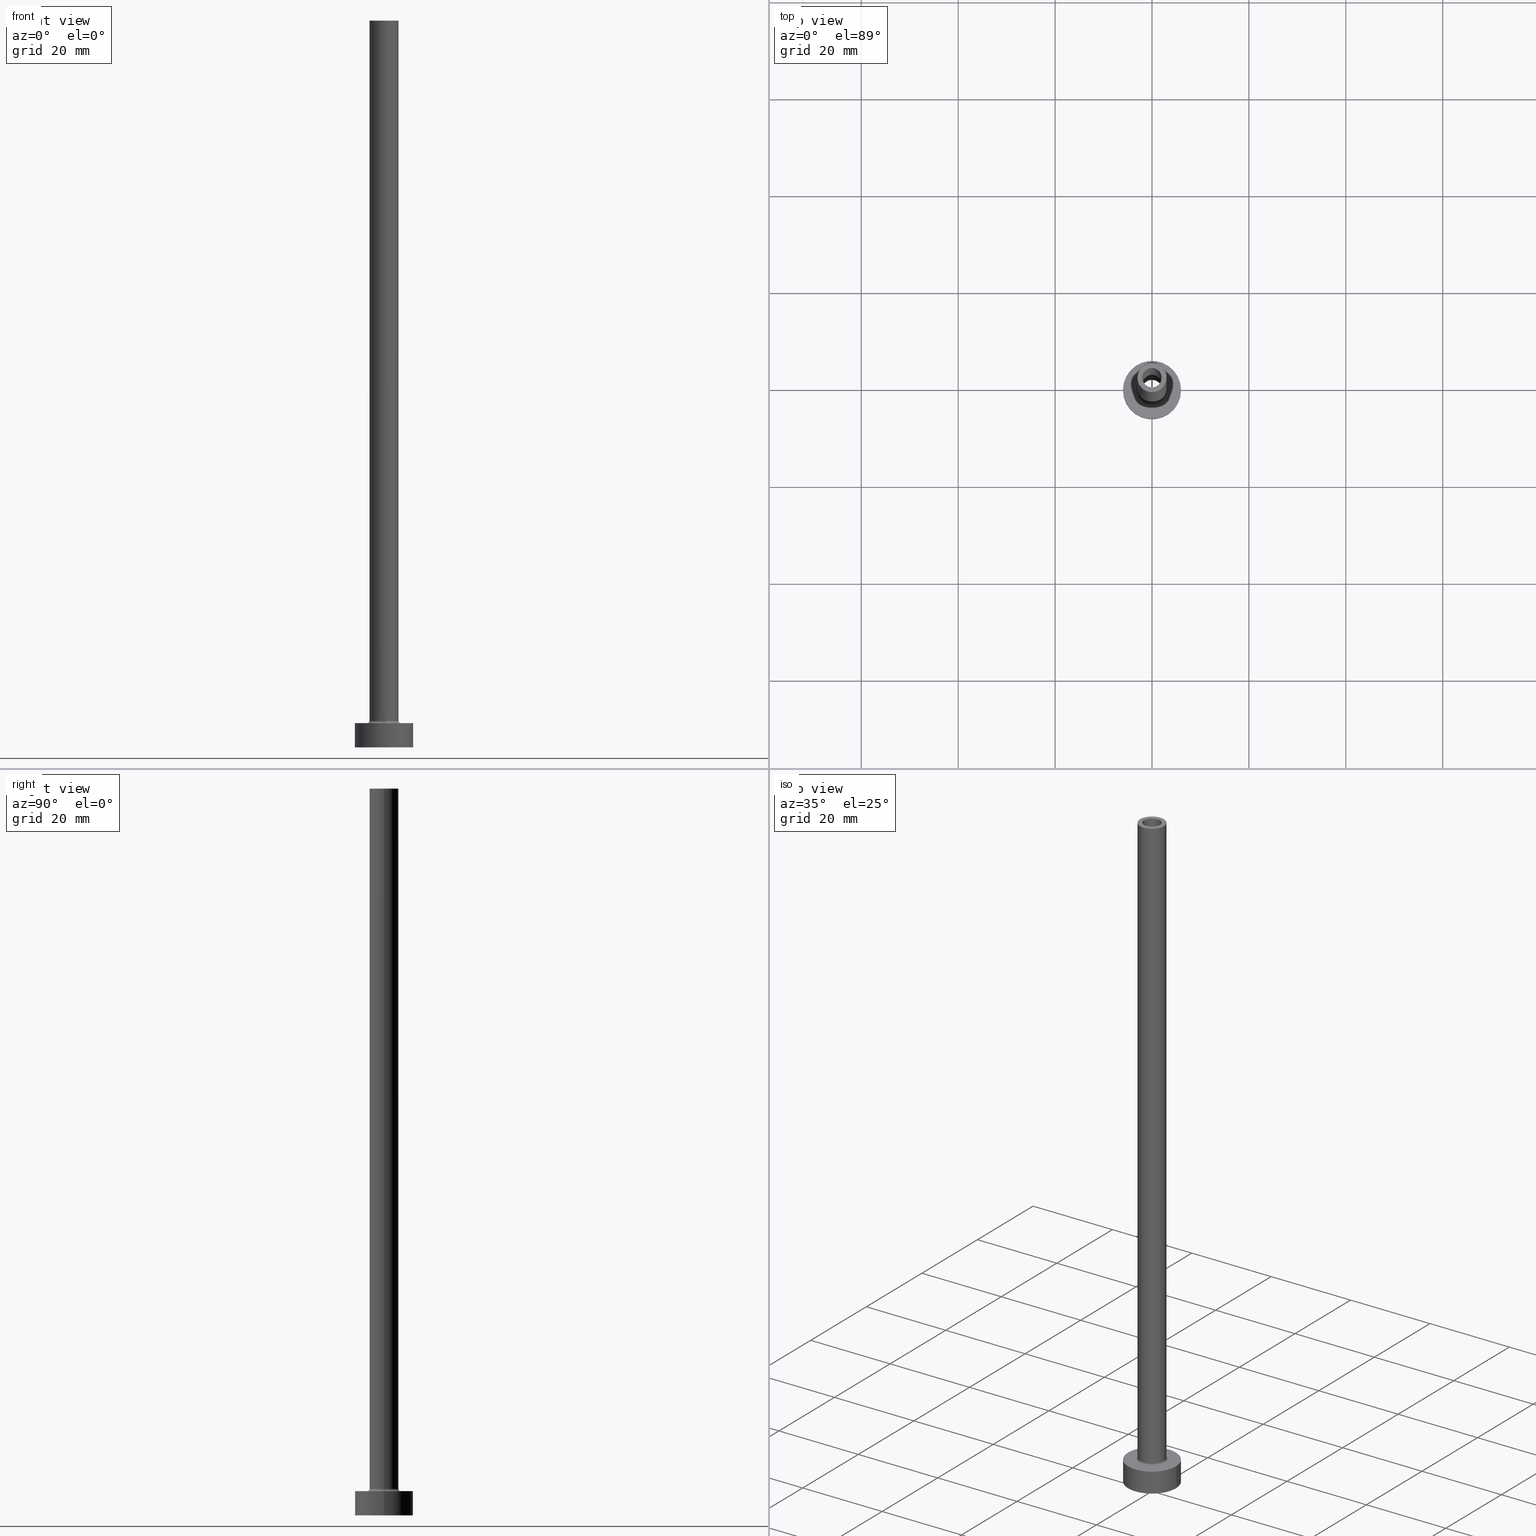
[diagram: canonical four-view strip — front | top / right | iso, engineering-drawing reading convention]
A machine part, canonical four-view strip (front | top / right | iso — engineering-drawing reading convention). The complete STEP part file that produces these views, byte-faithful:
ISO-10303-21;
HEADER;
FILE_DESCRIPTION (( 'STEP AP203' ),
    '1' );
FILE_NAME ('094d.STEP',
    '2023-02-13T11:09:22',
    ( '' ),
    ( '' ),
    'SwSTEP 2.0',
    'SolidWorks 2019',
    '' );
FILE_SCHEMA (( 'CONFIG_CONTROL_DESIGN' ));
ENDSEC;

DATA;
#1 = DIRECTION ( 'NONE',  ( 1.000000000000000000, 0.000000000000000000, 0.000000000000000000 ) ) ;
#2 = AXIS2_PLACEMENT_3D ( 'NONE', #33, #73, #353 ) ;
#3 = LINE ( 'NONE', #76, #10 ) ;
#4 = APPLICATION_PROTOCOL_DEFINITION ( 'international standard', 'config_control_design', 1994, #442 ) ;
#5 = CIRCLE ( 'NONE', #227, 0.4999999999999995559 ) ;
#6 = PERSON_AND_ORGANIZATION ( #116, #18 ) ;
#7 = EDGE_LOOP ( 'NONE', ( #170, #437 ) ) ;
#8 = APPROVAL_DATE_TIME ( #62, #239 ) ;
#9 = CARTESIAN_POINT ( 'NONE',  ( 0.000000000000000000, 0.000000000000000000, 5.000000000000000000 ) ) ;
#10 = VECTOR ( 'NONE', #144, 1000.000000000000000 ) ;
#11 = CC_DESIGN_SECURITY_CLASSIFICATION ( #45, ( #257 ) ) ;
#12 = ADVANCED_FACE ( 'NONE', ( #341 ), #241, .T. ) ;
#13 = DIRECTION ( 'NONE',  ( 1.000000000000000000, 0.000000000000000000, 0.000000000000000000 ) ) ;
#14 = VERTEX_POINT ( 'NONE', #409 ) ;
#15 = MECHANICAL_CONTEXT ( 'NONE', #167, 'mechanical' ) ;
#16 = DIRECTION ( 'NONE',  ( 0.000000000000000000, 0.000000000000000000, 1.000000000000000000 ) ) ;
#17 = CARTESIAN_POINT ( 'NONE',  ( 0.000000000000000000, 0.000000000000000000, 105.0000000000000000 ) ) ;
#18 = ORGANIZATION ( 'NEUR�EN�', 'NEUR�EN�', '' ) ;
#19 = ORIENTED_EDGE ( 'NONE', *, *, #328, .F. ) ;
#20 = ADVANCED_FACE ( 'NONE', ( #199 ), #68, .F. ) ;
#21 = VERTEX_POINT ( 'NONE', #180 ) ;
#22 = APPROVAL_STATUS ( 'not_yet_approved' ) ;
#23 = DIRECTION ( 'NONE',  ( 1.000000000000000000, 0.000000000000000000, 0.000000000000000000 ) ) ;
#24 = DIRECTION ( 'NONE',  ( 0.000000000000000000, 0.000000000000000000, -1.000000000000000000 ) ) ;
#25 = DIRECTION ( 'NONE',  ( 0.000000000000000000, 0.000000000000000000, -1.000000000000000000 ) ) ;
#26 = DIRECTION ( 'NONE',  ( 0.000000000000000000, 0.000000000000000000, 1.000000000000000000 ) ) ;
#27 = EDGE_LOOP ( 'NONE', ( #350, #196 ) ) ;
#28 = CC_DESIGN_DATE_AND_TIME_ASSIGNMENT ( #415, #137, ( #45 ) ) ;
#29 = VERTEX_POINT ( 'NONE', #212 ) ;
#30 = ADVANCED_BREP_SHAPE_REPRESENTATION ( '094d', ( #325, #221 ), #247 ) ;
#31 = CARTESIAN_POINT ( 'NONE',  ( 0.000000000000000000, 0.000000000000000000, 105.0000000000000000 ) ) ;
#32 = AXIS2_PLACEMENT_3D ( 'NONE', #246, #147, #182 ) ;
#33 = CARTESIAN_POINT ( 'NONE',  ( 0.000000000000000000, 0.000000000000000000, 111.0811183182043180 ) ) ;
#34 = AXIS2_PLACEMENT_3D ( 'NONE', #301, #429, #13 ) ;
#35 =( NAMED_UNIT ( * ) PLANE_ANGLE_UNIT ( ) SI_UNIT ( $, .RADIAN. ) );
#36 = CARTESIAN_POINT ( 'NONE',  ( 2.149999999999999911, 2.632990618166809235E-16, 105.0000000000000000 ) ) ;
#37 = DIRECTION ( 'NONE',  ( 0.000000000000000000, 0.000000000000000000, 1.000000000000000000 ) ) ;
#38 = EDGE_CURVE ( 'NONE', #14, #201, #378, .T. ) ;
#39 = CC_DESIGN_DATE_AND_TIME_ASSIGNMENT ( #79, #150, ( #249 ) ) ;
#40 = APPROVAL_STATUS ( 'not_yet_approved' ) ;
#41 = CALENDAR_DATE ( 2023, 13, 2 ) ;
#42 = DIRECTION ( 'NONE',  ( 0.000000000000000000, 0.000000000000000000, 1.000000000000000000 ) ) ;
#43 = ADVANCED_FACE ( 'NONE', ( #289 ), #280, .F. ) ;
#44 = VECTOR ( 'NONE', #461, 1000.000000000000000 ) ;
#45 = SECURITY_CLASSIFICATION ( '', '', #338 ) ;
#46 = APPROVAL_ROLE ( '' ) ;
#47 = PLANE ( 'NONE',  #323 ) ;
#48 = EDGE_LOOP ( 'NONE', ( #71, #310, #275, #218 ) ) ;
#49 = VERTEX_POINT ( 'NONE', #375 ) ;
#50 = EDGE_CURVE ( 'NONE', #49, #131, #91, .T. ) ;
#51 = ORIENTED_EDGE ( 'NONE', *, *, #329, .T. ) ;
#52 = EDGE_CURVE ( 'NONE', #284, #127, #138, .T. ) ;
#53 = ORIENTED_EDGE ( 'NONE', *, *, #232, .T. ) ;
#54 = EDGE_CURVE ( 'NONE', #453, #21, #337, .T. ) ;
#55 = VERTEX_POINT ( 'NONE', #314 ) ;
#56 = DIRECTION ( 'NONE',  ( 1.000000000000000000, 0.000000000000000000, -0.000000000000000000 ) ) ;
#57 = DIRECTION ( 'NONE',  ( -1.000000000000000000, 0.000000000000000000, 0.000000000000000000 ) ) ;
#58 = ORIENTED_EDGE ( 'NONE', *, *, #157, .T. ) ;
#59 = CARTESIAN_POINT ( 'NONE',  ( 0.000000000000000000, 0.000000000000000000, 0.000000000000000000 ) ) ;
#60 = DIRECTION ( 'NONE',  ( -1.000000000000000000, 1.224646799147354440E-16, 0.000000000000000000 ) ) ;
#61 = FACE_OUTER_BOUND ( 'NONE', #271, .T. ) ;
#62 = DATE_AND_TIME ( #92, #155 ) ;
#63 = CALENDAR_DATE ( 2023, 13, 2 ) ;
#64 = EDGE_LOOP ( 'NONE', ( #347, #402, #103, #19 ) ) ;
#65 = CARTESIAN_POINT ( 'NONE',  ( -3.000000000000000444, 0.000000000000000000, 150.0000000000000000 ) ) ;
#66 = PERSON_AND_ORGANIZATION_ROLE ( 'classification_officer' ) ;
#67 = ADVANCED_FACE ( 'NONE', ( #161 ), #136, .F. ) ;
#68 = CYLINDRICAL_SURFACE ( 'NONE', #121, 2.149999999999999911 ) ;
#69 = AXIS2_PLACEMENT_3D ( 'NONE', #94, #374, #97 ) ;
#70 = APPROVAL_PERSON_ORGANIZATION ( #186, #244, #256 ) ;
#71 = ORIENTED_EDGE ( 'NONE', *, *, #460, .F. ) ;
#72 = CARTESIAN_POINT ( 'NONE',  ( 0.000000000000000000, 0.000000000000000000, 5.500000000000005329 ) ) ;
#73 = DIRECTION ( 'NONE',  ( 0.000000000000000000, 0.000000000000000000, -1.000000000000000000 ) ) ;
#74 = CYLINDRICAL_SURFACE ( 'NONE', #87, 6.000000000000000888 ) ;
#75 = DIRECTION ( 'NONE',  ( 1.000000000000000000, 0.000000000000000000, 0.000000000000000000 ) ) ;
#76 = CARTESIAN_POINT ( 'NONE',  ( 2.149999999999999911, 2.632990618166809235E-16, 111.0811183182043180 ) ) ;
#77 = VECTOR ( 'NONE', #265, 1000.000000000000000 ) ;
#78 = DIRECTION ( 'NONE',  ( 0.000000000000000000, 0.000000000000000000, 1.000000000000000000 ) ) ;
#79 = DATE_AND_TIME ( #299, #398 ) ;
#80 = AXIS2_PLACEMENT_3D ( 'NONE', #259, #189, #324 ) ;
#81 = AXIS2_PLACEMENT_3D ( 'NONE', #72, #243, #383 ) ;
#82 = DIRECTION ( 'NONE',  ( 0.000000000000000000, -1.000000000000000000, 0.000000000000000000 ) ) ;
#83 = FACE_BOUND ( 'NONE', #7, .T. ) ;
#84 = ORIENTED_EDGE ( 'NONE', *, *, #297, .F. ) ;
#85 = VECTOR ( 'NONE', #203, 1000.000000000000000 ) ;
#86 = ADVANCED_FACE ( 'NONE', ( #200, #61 ), #177, .T. ) ;
#87 = AXIS2_PLACEMENT_3D ( 'NONE', #354, #318, #458 ) ;
#88 = ORIENTED_EDGE ( 'NONE', *, *, #153, .T. ) ;
#89 = ORIENTED_EDGE ( 'NONE', *, *, #340, .T. ) ;
#90 = VECTOR ( 'NONE', #174, 1000.000000000000000 ) ;
#91 = LINE ( 'NONE', #349, #90 ) ;
#92 = CALENDAR_DATE ( 2023, 13, 2 ) ;
#93 = APPROVAL_PERSON_ORGANIZATION ( #252, #239, #46 ) ;
#94 = CARTESIAN_POINT ( 'NONE',  ( 0.000000000000000000, 0.000000000000000000, 105.0000000000000000 ) ) ;
#95 = ADVANCED_FACE ( 'NONE', ( #452 ), #288, .T. ) ;
#96 = CARTESIAN_POINT ( 'NONE',  ( 0.000000000000000000, 0.000000000000000000, 111.0811183182043180 ) ) ;
#97 = DIRECTION ( 'NONE',  ( 1.000000000000000000, 0.000000000000000000, 0.000000000000000000 ) ) ;
#98 = ORIENTED_EDGE ( 'NONE', *, *, #297, .T. ) ;
#99 = EDGE_LOOP ( 'NONE', ( #211, #173 ) ) ;
#100 = CIRCLE ( 'NONE', #413, 2.000000000000000000 ) ;
#101 = ORIENTED_EDGE ( 'NONE', *, *, #329, .F. ) ;
#102 = DIRECTION ( 'NONE',  ( 0.000000000000000000, 0.000000000000000000, 1.000000000000000000 ) ) ;
#103 = ORIENTED_EDGE ( 'NONE', *, *, #168, .T. ) ;
#104 = DIRECTION ( 'NONE',  ( -0.000000000000000000, -0.000000000000000000, -1.000000000000000000 ) ) ;
#105 = DIRECTION ( 'NONE',  ( 1.000000000000000000, 0.000000000000000000, 0.000000000000000000 ) ) ;
#106 = AXIS2_PLACEMENT_3D ( 'NONE', #262, #42, #156 ) ;
#107 = CARTESIAN_POINT ( 'NONE',  ( 2.000000000000000000, 2.449293598294705921E-16, 150.0000000000000000 ) ) ;
#108 = FACE_OUTER_BOUND ( 'NONE', #48, .T. ) ;
#109 = VERTEX_POINT ( 'NONE', #152 ) ;
#110 = PERSON_AND_ORGANIZATION_ROLE ( 'creator' ) ;
#111 = ADVANCED_FACE ( 'NONE', ( #322 ), #386, .T. ) ;
#112 = DIRECTION ( 'NONE',  ( 1.000000000000000000, 0.000000000000000000, 0.000000000000000000 ) ) ;
#113 = EDGE_LOOP ( 'NONE', ( #395, #352, #377, #343 ) ) ;
#114 = CC_DESIGN_PERSON_AND_ORGANIZATION_ASSIGNMENT ( #6, #110, ( #249 ) ) ;
#115 = DIRECTION ( 'NONE',  ( 0.000000000000000000, 0.000000000000000000, 1.000000000000000000 ) ) ;
#116 = PERSON ( 'NEUR�EN�', 'NEUR�EN�', 'NEUR�EN�', ('NEUR�EN�'), ('NEUR�EN�'), ('NEUR�EN�') ) ;
#117 = AXIS2_PLACEMENT_3D ( 'NONE', #367, #444, #269 ) ;
#118 = PERSON_AND_ORGANIZATION ( #116, #18 ) ;
#119 = EDGE_LOOP ( 'NONE', ( #229, #88, #228, #84 ) ) ;
#120 = CARTESIAN_POINT ( 'NONE',  ( -2.000000000000000000, 0.000000000000000000, 150.0000000000000000 ) ) ;
#121 = AXIS2_PLACEMENT_3D ( 'NONE', #96, #25, #443 ) ;
#122 = CARTESIAN_POINT ( 'NONE',  ( 3.000000000000000444, 3.673940397442060361E-16, 150.0000000000000000 ) ) ;
#123 = VERTEX_POINT ( 'NONE', #295 ) ;
#124 = CARTESIAN_POINT ( 'NONE',  ( 0.000000000000000000, 0.000000000000000000, 5.000000000000000000 ) ) ;
#125 = VERTEX_POINT ( 'NONE', #283 ) ;
#126 = DIRECTION ( 'NONE',  ( 0.000000000000000000, 0.000000000000000000, -1.000000000000000000 ) ) ;
#127 = VERTEX_POINT ( 'NONE', #216 ) ;
#128 = CIRCLE ( 'NONE', #455, 3.500000000000000444 ) ;
#129 = PERSON_AND_ORGANIZATION ( #116, #18 ) ;
#130 = AXIS2_PLACEMENT_3D ( 'NONE', #17, #306, #441 ) ;
#131 = VERTEX_POINT ( 'NONE', #384 ) ;
#132 = DIRECTION ( 'NONE',  ( 1.000000000000000000, 0.000000000000000000, 0.000000000000000000 ) ) ;
#133 = APPROVAL_DATE_TIME ( #205, #405 ) ;
#134 = EDGE_CURVE ( 'NONE', #55, #453, #411, .T. ) ;
#135 = LINE ( 'NONE', #65, #85 ) ;
#136 = CYLINDRICAL_SURFACE ( 'NONE', #190, 2.000000000000000000 ) ;
#137 = DATE_TIME_ROLE ( 'classification_date' ) ;
#138 = CIRCLE ( 'NONE', #293, 3.500000000000000444 ) ;
#139 = EDGE_CURVE ( 'NONE', #29, #194, #210, .T. ) ;
#140 = DIRECTION ( 'NONE',  ( 1.000000000000000000, 0.000000000000000000, 0.000000000000000000 ) ) ;
#141 = CIRCLE ( 'NONE', #32, 3.000000000000000444 ) ;
#142 = CC_DESIGN_APPROVAL ( #244, ( #249 ) ) ;
#143 = ORIENTED_EDGE ( 'NONE', *, *, #171, .F. ) ;
#144 = DIRECTION ( 'NONE',  ( 0.000000000000000000, 0.000000000000000000, -1.000000000000000000 ) ) ;
#145 = UNCERTAINTY_MEASURE_WITH_UNIT (LENGTH_MEASURE( 1.000000000000000082E-05 ), #362, 'distance_accuracy_value', 'NONE');
#146 = FACE_OUTER_BOUND ( 'NONE', #119, .T. ) ;
#147 = DIRECTION ( 'NONE',  ( 0.000000000000000000, 0.000000000000000000, 1.000000000000000000 ) ) ;
#148 = CIRCLE ( 'NONE', #169, 6.000000000000000888 ) ;
#149 = CARTESIAN_POINT ( 'NONE',  ( 0.000000000000000000, 0.000000000000000000, 0.000000000000000000 ) ) ;
#150 = DATE_TIME_ROLE ( 'creation_date' ) ;
#151 = APPROVAL_STATUS ( 'not_yet_approved' ) ;
#152 = CARTESIAN_POINT ( 'NONE',  ( 2.149999999999999911, 2.632990618166809235E-16, 0.000000000000000000 ) ) ;
#153 = EDGE_CURVE ( 'NONE', #125, #127, #5, .T. ) ;
#154 = ADVANCED_FACE ( 'NONE', ( #108 ), #300, .F. ) ;
#155 = LOCAL_TIME ( 12, 9, 22.00000000000000000, #192 ) ;
#156 = DIRECTION ( 'NONE',  ( 1.000000000000000000, 0.000000000000000000, 0.000000000000000000 ) ) ;
#157 = EDGE_CURVE ( 'NONE', #127, #284, #128, .T. ) ;
#158 = LINE ( 'NONE', #305, #206 ) ;
#159 = ORIENTED_EDGE ( 'NONE', *, *, #304, .T. ) ;
#160 = AXIS2_PLACEMENT_3D ( 'NONE', #419, #104, #294 ) ;
#161 = FACE_OUTER_BOUND ( 'NONE', #176, .T. ) ;
#162 = ORIENTED_EDGE ( 'NONE', *, *, #52, .T. ) ;
#163 = ORIENTED_EDGE ( 'NONE', *, *, #232, .F. ) ;
#164 = PERSON_AND_ORGANIZATION_ROLE ( 'design_supplier' ) ;
#165 = DIRECTION ( 'NONE',  ( -1.000000000000000000, 0.000000000000000000, 0.000000000000000000 ) ) ;
#166 = DIRECTION ( 'NONE',  ( -0.000000000000000000, -0.000000000000000000, -1.000000000000000000 ) ) ;
#167 = APPLICATION_CONTEXT ( 'configuration controlled 3d designs of mechanical parts and assemblies' ) ;
#168 = EDGE_CURVE ( 'NONE', #109, #277, #390, .T. ) ;
#169 = AXIS2_PLACEMENT_3D ( 'NONE', #245, #387, #112 ) ;
#170 = ORIENTED_EDGE ( 'NONE', *, *, #181, .F. ) ;
#171 = EDGE_CURVE ( 'NONE', #21, #407, #236, .T. ) ;
#172 = DIRECTION ( 'NONE',  ( -0.000000000000000000, -0.000000000000000000, -1.000000000000000000 ) ) ;
#173 = ORIENTED_EDGE ( 'NONE', *, *, #134, .F. ) ;
#174 = DIRECTION ( 'NONE',  ( -0.000000000000000000, -0.000000000000000000, -1.000000000000000000 ) ) ;
#175 = EDGE_CURVE ( 'NONE', #285, #125, #135, .T. ) ;
#176 = EDGE_LOOP ( 'NONE', ( #159, #370, #143, #404 ) ) ;
#177 = PLANE ( 'NONE',  #388 ) ;
#178 = AXIS2_PLACEMENT_3D ( 'NONE', #361, #37, #105 ) ;
#179 = CIRCLE ( 'NONE', #372, 6.000000000000000888 ) ;
#180 = CARTESIAN_POINT ( 'NONE',  ( -2.000000000000000000, 0.000000000000000000, 105.0000000000000000 ) ) ;
#181 = EDGE_CURVE ( 'NONE', #277, #109, #438, .T. ) ;
#182 = DIRECTION ( 'NONE',  ( 1.000000000000000000, 0.000000000000000000, 0.000000000000000000 ) ) ;
#183 = DIRECTION ( 'NONE',  ( 0.000000000000000000, 0.000000000000000000, 1.000000000000000000 ) ) ;
#184 =( NAMED_UNIT ( * ) SI_UNIT ( $, .STERADIAN. ) SOLID_ANGLE_UNIT ( ) );
#185 = DIRECTION ( 'NONE',  ( 0.000000000000000000, 0.000000000000000000, 1.000000000000000000 ) ) ;
#186 = PERSON_AND_ORGANIZATION ( #116, #18 ) ;
#187 = CARTESIAN_POINT ( 'NONE',  ( 3.500000000000000444, 0.000000000000000000, 5.000000000000002665 ) ) ;
#188 = ORIENTED_EDGE ( 'NONE', *, *, #440, .F. ) ;
#189 = DIRECTION ( 'NONE',  ( 0.000000000000000000, 0.000000000000000000, -1.000000000000000000 ) ) ;
#190 = AXIS2_PLACEMENT_3D ( 'NONE', #278, #126, #57 ) ;
#191 = CIRCLE ( 'NONE', #448, 6.000000000000000888 ) ;
#192 = COORDINATED_UNIVERSAL_TIME_OFFSET ( 1, 0, .AHEAD. ) ;
#193 = DIRECTION ( 'NONE',  ( 0.000000000000000000, 0.000000000000000000, 1.000000000000000000 ) ) ;
#194 = VERTEX_POINT ( 'NONE', #449 ) ;
#195 = EDGE_LOOP ( 'NONE', ( #348, #51, #339, #279 ) ) ;
#196 = ORIENTED_EDGE ( 'NONE', *, *, #417, .T. ) ;
#197 = AXIS2_PLACEMENT_3D ( 'NONE', #358, #185, #459 ) ;
#198 = CC_DESIGN_APPROVAL ( #405, ( #45 ) ) ;
#199 = FACE_OUTER_BOUND ( 'NONE', #64, .T. ) ;
#200 = FACE_BOUND ( 'NONE', #99, .T. ) ;
#201 = VERTEX_POINT ( 'NONE', #36 ) ;
#202 = AXIS2_PLACEMENT_3D ( 'NONE', #268, #307, #165 ) ;
#203 = DIRECTION ( 'NONE',  ( -0.000000000000000000, -0.000000000000000000, -1.000000000000000000 ) ) ;
#204 = CARTESIAN_POINT ( 'NONE',  ( 0.000000000000000000, 0.000000000000000000, 5.000000000000000000 ) ) ;
#205 = DATE_AND_TIME ( #63, #421 ) ;
#206 = VECTOR ( 'NONE', #334, 1000.000000000000000 ) ;
#207 = DIRECTION ( 'NONE',  ( 1.000000000000000000, 0.000000000000000000, 0.000000000000000000 ) ) ;
#208 = CC_DESIGN_PERSON_AND_ORGANIZATION_ASSIGNMENT ( #450, #164, ( #257 ) ) ;
#209 = VERTEX_POINT ( 'NONE', #248 ) ;
#210 = LINE ( 'NONE', #355, #44 ) ;
#211 = ORIENTED_EDGE ( 'NONE', *, *, #304, .F. ) ;
#212 = CARTESIAN_POINT ( 'NONE',  ( 6.000000000000000888, 7.347880794884120722E-16, 5.000000000000000000 ) ) ;
#213 = DIRECTION ( 'NONE',  ( -0.000000000000000000, -0.000000000000000000, -1.000000000000000000 ) ) ;
#214 = LOCAL_TIME ( 12, 9, 22.00000000000000000, #220 ) ;
#215 = AXIS2_PLACEMENT_3D ( 'NONE', #371, #193, #56 ) ;
#216 = CARTESIAN_POINT ( 'NONE',  ( -3.500000000000000444, 4.286263797015737088E-16, 5.000000000000002665 ) ) ;
#217 = AXIS2_PLACEMENT_3D ( 'NONE', #381, #360, #1 ) ;
#218 = ORIENTED_EDGE ( 'NONE', *, *, #417, .F. ) ;
#219 = AXIS2_PLACEMENT_3D ( 'NONE', #422, #213, #356 ) ;
#220 = COORDINATED_UNIVERSAL_TIME_OFFSET ( 1, 0, .AHEAD. ) ;
#221 = AXIS2_PLACEMENT_3D ( 'NONE', #149, #251, #396 ) ;
#222 = PRODUCT ( '094d', '094d', '', ( #15 ) ) ;
#223 = EDGE_CURVE ( 'NONE', #123, #125, #141, .T. ) ;
#224 = FACE_BOUND ( 'NONE', #27, .T. ) ;
#225 = FACE_OUTER_BOUND ( 'NONE', #308, .T. ) ;
#226 = PRODUCT_DEFINITION_SHAPE ( 'NONE', 'NONE',  #249 ) ;
#227 = AXIS2_PLACEMENT_3D ( 'NONE', #298, #412, #60 ) ;
#228 = ORIENTED_EDGE ( 'NONE', *, *, #52, .F. ) ;
#229 = ORIENTED_EDGE ( 'NONE', *, *, #389, .F. ) ;
#230 = EDGE_CURVE ( 'NONE', #201, #109, #3, .T. ) ;
#231 = DIRECTION ( 'NONE',  ( -0.000000000000000000, -0.000000000000000000, -1.000000000000000000 ) ) ;
#232 = EDGE_CURVE ( 'NONE', #285, #209, #242, .T. ) ;
#233 = PLANE ( 'NONE',  #215 ) ;
#234 = ORIENTED_EDGE ( 'NONE', *, *, #175, .T. ) ;
#235 = ADVANCED_FACE ( 'NONE', ( #146 ), #447, .F. ) ;
#236 = CIRCLE ( 'NONE', #69, 2.000000000000000000 ) ;
#237 = CIRCLE ( 'NONE', #34, 6.000000000000000888 ) ;
#238 = ORIENTED_EDGE ( 'NONE', *, *, #139, .F. ) ;
#239 = APPROVAL ( #40, 'NEUR�EN�' ) ;
#240 = EDGE_LOOP ( 'NONE', ( #369, #313, #456, #260 ) ) ;
#241 = CYLINDRICAL_SURFACE ( 'NONE', #202, 3.000000000000000444 ) ;
#242 = CIRCLE ( 'NONE', #197, 3.000000000000000444 ) ;
#243 = DIRECTION ( 'NONE',  ( 0.000000000000000000, 0.000000000000000000, 1.000000000000000000 ) ) ;
#244 = APPROVAL ( #151, 'NEUR�EN�' ) ;
#245 = CARTESIAN_POINT ( 'NONE',  ( 0.000000000000000000, 0.000000000000000000, 0.000000000000000000 ) ) ;
#246 = CARTESIAN_POINT ( 'NONE',  ( 0.000000000000000000, 0.000000000000000000, 5.500000000000005329 ) ) ;
#247 =( GEOMETRIC_REPRESENTATION_CONTEXT ( 3 ) GLOBAL_UNCERTAINTY_ASSIGNED_CONTEXT ( ( #145 ) ) GLOBAL_UNIT_ASSIGNED_CONTEXT ( ( #362, #35, #184 ) ) REPRESENTATION_CONTEXT ( 'NONE', 'WORKASPACE' ) );
#248 = CARTESIAN_POINT ( 'NONE',  ( 3.000000000000000444, 3.673940397442060361E-16, 150.0000000000000000 ) ) ;
#249 = PRODUCT_DEFINITION ( 'NEZN�M�', '', #257, #345 ) ;
#250 = ORIENTED_EDGE ( 'NONE', *, *, #223, .F. ) ;
#251 = DIRECTION ( 'NONE',  ( 0.000000000000000000, 0.000000000000000000, 1.000000000000000000 ) ) ;
#252 = PERSON_AND_ORGANIZATION ( #116, #18 ) ;
#253 = DIRECTION ( 'NONE',  ( -0.000000000000000000, -0.000000000000000000, -1.000000000000000000 ) ) ;
#254 = COORDINATED_UNIVERSAL_TIME_OFFSET ( 1, 0, .AHEAD. ) ;
#255 = ADVANCED_FACE ( 'NONE', ( #320, #291 ), #420, .T. ) ;
#256 = APPROVAL_ROLE ( '' ) ;
#257 = PRODUCT_DEFINITION_FORMATION_WITH_SPECIFIED_SOURCE ( 'LIBOVOLN�', '', #222, .NOT_KNOWN. ) ;
#258 = DIRECTION ( 'NONE',  ( 1.000000000000000000, 0.000000000000000000, -0.000000000000000000 ) ) ;
#259 = CARTESIAN_POINT ( 'NONE',  ( 0.000000000000000000, 0.000000000000000000, 150.0000000000000000 ) ) ;
#260 = ORIENTED_EDGE ( 'NONE', *, *, #181, .T. ) ;
#261 = ADVANCED_FACE ( 'NONE', ( #264 ), #311, .F. ) ;
#262 = CARTESIAN_POINT ( 'NONE',  ( 0.000000000000000000, 0.000000000000000000, 5.500000000000005329 ) ) ;
#263 = EDGE_CURVE ( 'NONE', #209, #285, #302, .T. ) ;
#264 = FACE_OUTER_BOUND ( 'NONE', #315, .T. ) ;
#265 = DIRECTION ( 'NONE',  ( -0.000000000000000000, -0.000000000000000000, -1.000000000000000000 ) ) ;
#266 = AXIS2_PLACEMENT_3D ( 'NONE', #451, #183, #75 ) ;
#267 = ORIENTED_EDGE ( 'NONE', *, *, #434, .T. ) ;
#268 = CARTESIAN_POINT ( 'NONE',  ( 0.000000000000000000, 0.000000000000000000, 150.0000000000000000 ) ) ;
#269 = DIRECTION ( 'NONE',  ( 1.000000000000000000, 0.000000000000000000, 0.000000000000000000 ) ) ;
#270 = CC_DESIGN_PERSON_AND_ORGANIZATION_ASSIGNMENT ( #351, #66, ( #45 ) ) ;
#271 = EDGE_LOOP ( 'NONE', ( #53, #445 ) ) ;
#272 = AXIS2_PLACEMENT_3D ( 'NONE', #330, #16, #303 ) ;
#273 = SHAPE_DEFINITION_REPRESENTATION ( #226, #30 ) ;
#274 = ORIENTED_EDGE ( 'NONE', *, *, #434, .F. ) ;
#275 = ORIENTED_EDGE ( 'NONE', *, *, #54, .T. ) ;
#276 = PERSON_AND_ORGANIZATION_ROLE ( 'creator' ) ;
#277 = VERTEX_POINT ( 'NONE', #364 ) ;
#278 = CARTESIAN_POINT ( 'NONE',  ( 0.000000000000000000, 0.000000000000000000, 150.0000000000000000 ) ) ;
#279 = ORIENTED_EDGE ( 'NONE', *, *, #175, .F. ) ;
#280 = CYLINDRICAL_SURFACE ( 'NONE', #2, 2.149999999999999911 ) ;
#281 = CC_DESIGN_PERSON_AND_ORGANIZATION_ASSIGNMENT ( #118, #276, ( #257 ) ) ;
#282 = DIRECTION ( 'NONE',  ( 1.000000000000000000, 0.000000000000000000, 0.000000000000000000 ) ) ;
#283 = CARTESIAN_POINT ( 'NONE',  ( -3.000000000000000444, 0.000000000000000000, 5.500000000000005329 ) ) ;
#284 = VERTEX_POINT ( 'NONE', #187 ) ;
#285 = VERTEX_POINT ( 'NONE', #428 ) ;
#286 = ADVANCED_FACE ( 'NONE', ( #224, #366 ), #47, .F. ) ;
#287 = DIRECTION ( 'NONE',  ( 0.000000000000000000, 0.000000000000000000, 1.000000000000000000 ) ) ;
#288 = CYLINDRICAL_SURFACE ( 'NONE', #160, 6.000000000000000888 ) ;
#289 = FACE_OUTER_BOUND ( 'NONE', #240, .T. ) ;
#290 = CARTESIAN_POINT ( 'NONE',  ( 2.000000000000000000, 2.449293598294705921E-16, 105.0000000000000000 ) ) ;
#291 = FACE_OUTER_BOUND ( 'NONE', #316, .T. ) ;
#292 = PERSON_AND_ORGANIZATION_ROLE ( 'design_owner' ) ;
#293 = AXIS2_PLACEMENT_3D ( 'NONE', #204, #231, #23 ) ;
#294 = DIRECTION ( 'NONE',  ( -1.000000000000000000, 0.000000000000000000, 0.000000000000000000 ) ) ;
#295 = CARTESIAN_POINT ( 'NONE',  ( 3.000000000000000444, 3.673940397442060361E-16, 5.500000000000005329 ) ) ;
#296 = EDGE_LOOP ( 'NONE', ( #101, #163, #234, #385 ) ) ;
#297 = EDGE_CURVE ( 'NONE', #123, #284, #336, .T. ) ;
#298 = CARTESIAN_POINT ( 'NONE',  ( -3.500000000000000444, 4.286263797015737088E-16, 5.500000000000005329 ) ) ;
#299 = CALENDAR_DATE ( 2023, 13, 2 ) ;
#300 = CYLINDRICAL_SURFACE ( 'NONE', #80, 2.000000000000000000 ) ;
#301 = CARTESIAN_POINT ( 'NONE',  ( 0.000000000000000000, 0.000000000000000000, 0.000000000000000000 ) ) ;
#302 = CIRCLE ( 'NONE', #272, 3.000000000000000444 ) ;
#303 = DIRECTION ( 'NONE',  ( 1.000000000000000000, 0.000000000000000000, 0.000000000000000000 ) ) ;
#304 = EDGE_CURVE ( 'NONE', #453, #55, #392, .T. ) ;
#305 = CARTESIAN_POINT ( 'NONE',  ( -2.149999999999999911, 0.000000000000000000, 111.0811183182043180 ) ) ;
#306 = DIRECTION ( 'NONE',  ( 0.000000000000000000, 0.000000000000000000, 1.000000000000000000 ) ) ;
#307 = DIRECTION ( 'NONE',  ( -0.000000000000000000, -0.000000000000000000, -1.000000000000000000 ) ) ;
#308 = EDGE_LOOP ( 'NONE', ( #274, #188 ) ) ;
#309 = ORIENTED_EDGE ( 'NONE', *, *, #38, .F. ) ;
#310 = ORIENTED_EDGE ( 'NONE', *, *, #134, .T. ) ;
#311 = TOROIDAL_SURFACE ( 'NONE', #106, 3.500000000000000444, 0.5000000000000000000 ) ;
#312 = CARTESIAN_POINT ( 'NONE',  ( -2.000000000000000000, 0.000000000000000000, 150.0000000000000000 ) ) ;
#313 = ORIENTED_EDGE ( 'NONE', *, *, #332, .T. ) ;
#314 = CARTESIAN_POINT ( 'NONE',  ( 2.000000000000000000, 2.449293598294705921E-16, 150.0000000000000000 ) ) ;
#315 = EDGE_LOOP ( 'NONE', ( #403, #250, #98, #424 ) ) ;
#316 = EDGE_LOOP ( 'NONE', ( #326, #89 ) ) ;
#317 = VECTOR ( 'NONE', #414, 1000.000000000000000 ) ;
#318 = DIRECTION ( 'NONE',  ( -0.000000000000000000, -0.000000000000000000, -1.000000000000000000 ) ) ;
#319 = ADVANCED_FACE ( 'NONE', ( #83, #225 ), #233, .F. ) ;
#320 = FACE_BOUND ( 'NONE', #373, .T. ) ;
#321 = PERSON_AND_ORGANIZATION ( #116, #18 ) ;
#322 = FACE_OUTER_BOUND ( 'NONE', #195, .T. ) ;
#323 = AXIS2_PLACEMENT_3D ( 'NONE', #435, #115, #258 ) ;
#324 = DIRECTION ( 'NONE',  ( -1.000000000000000000, 0.000000000000000000, 0.000000000000000000 ) ) ;
#325 = MANIFOLD_SOLID_BREP ( 'Odebrat vysunut�m4', #344 ) ;
#326 = ORIENTED_EDGE ( 'NONE', *, *, #391, .T. ) ;
#327 = APPLICATION_PROTOCOL_DEFINITION ( 'international standard', 'config_control_design', 1994, #167 ) ;
#328 = EDGE_CURVE ( 'NONE', #14, #277, #158, .T. ) ;
#329 = EDGE_CURVE ( 'NONE', #209, #123, #436, .T. ) ;
#330 = CARTESIAN_POINT ( 'NONE',  ( 0.000000000000000000, 0.000000000000000000, 150.0000000000000000 ) ) ;
#331 = CIRCLE ( 'NONE', #130, 2.149999999999999911 ) ;
#332 = EDGE_CURVE ( 'NONE', #201, #14, #331, .T. ) ;
#333 = DIRECTION ( 'NONE',  ( 1.000000000000000000, 0.000000000000000000, -0.000000000000000000 ) ) ;
#334 = DIRECTION ( 'NONE',  ( 0.000000000000000000, 0.000000000000000000, -1.000000000000000000 ) ) ;
#335 = AXIS2_PLACEMENT_3D ( 'NONE', #359, #166, #132 ) ;
#336 = CIRCLE ( 'NONE', #433, 0.5000000000000004441 ) ;
#337 = LINE ( 'NONE', #312, #427 ) ;
#338 = SECURITY_CLASSIFICATION_LEVEL ( 'unclassified' ) ;
#339 = ORIENTED_EDGE ( 'NONE', *, *, #223, .T. ) ;
#340 = EDGE_CURVE ( 'NONE', #29, #49, #179, .T. ) ;
#341 = FACE_OUTER_BOUND ( 'NONE', #296, .T. ) ;
#342 = DIRECTION ( 'NONE',  ( 1.000000000000000000, 0.000000000000000000, 0.000000000000000000 ) ) ;
#343 = ORIENTED_EDGE ( 'NONE', *, *, #50, .F. ) ;
#344 = CLOSED_SHELL ( 'NONE', ( #67, #20, #235, #111, #95, #426, #255, #319, #12, #86, #261, #43, #286, #154 ) ) ;
#345 = DESIGN_CONTEXT ( 'detailed design', #442, 'design' ) ;
#346 = COORDINATED_UNIVERSAL_TIME_OFFSET ( 1, 0, .AHEAD. ) ;
#347 = ORIENTED_EDGE ( 'NONE', *, *, #38, .T. ) ;
#348 = ORIENTED_EDGE ( 'NONE', *, *, #263, .F. ) ;
#349 = CARTESIAN_POINT ( 'NONE',  ( -6.000000000000000888, 0.000000000000000000, 5.000000000000000000 ) ) ;
#350 = ORIENTED_EDGE ( 'NONE', *, *, #171, .T. ) ;
#351 = PERSON_AND_ORGANIZATION ( #116, #18 ) ;
#352 = ORIENTED_EDGE ( 'NONE', *, *, #139, .T. ) ;
#353 = DIRECTION ( 'NONE',  ( -1.000000000000000000, 0.000000000000000000, 0.000000000000000000 ) ) ;
#354 = CARTESIAN_POINT ( 'NONE',  ( 0.000000000000000000, 0.000000000000000000, 5.000000000000000000 ) ) ;
#355 = CARTESIAN_POINT ( 'NONE',  ( 6.000000000000000888, 7.347880794884120722E-16, 5.000000000000000000 ) ) ;
#356 = DIRECTION ( 'NONE',  ( -1.000000000000000000, 0.000000000000000000, 0.000000000000000000 ) ) ;
#357 = CC_DESIGN_APPROVAL ( #239, ( #257 ) ) ;
#358 = CARTESIAN_POINT ( 'NONE',  ( 0.000000000000000000, 0.000000000000000000, 150.0000000000000000 ) ) ;
#359 = CARTESIAN_POINT ( 'NONE',  ( 0.000000000000000000, 0.000000000000000000, 0.000000000000000000 ) ) ;
#360 = DIRECTION ( 'NONE',  ( 0.000000000000000000, 0.000000000000000000, 1.000000000000000000 ) ) ;
#361 = CARTESIAN_POINT ( 'NONE',  ( 0.000000000000000000, 0.000000000000000000, 5.500000000000005329 ) ) ;
#362 =( LENGTH_UNIT ( ) NAMED_UNIT ( * ) SI_UNIT ( .MILLI., .METRE. ) );
#363 = LINE ( 'NONE', #107, #317 ) ;
#364 = CARTESIAN_POINT ( 'NONE',  ( -2.149999999999999911, 0.000000000000000000, 0.000000000000000000 ) ) ;
#365 = DIRECTION ( 'NONE',  ( 0.000000000000000000, 0.000000000000000000, -1.000000000000000000 ) ) ;
#366 = FACE_OUTER_BOUND ( 'NONE', #379, .T. ) ;
#367 = CARTESIAN_POINT ( 'NONE',  ( 0.000000000000000000, 0.000000000000000000, 150.0000000000000000 ) ) ;
#368 = ORIENTED_EDGE ( 'NONE', *, *, #50, .T. ) ;
#369 = ORIENTED_EDGE ( 'NONE', *, *, #230, .F. ) ;
#370 = ORIENTED_EDGE ( 'NONE', *, *, #460, .T. ) ;
#371 = CARTESIAN_POINT ( 'NONE',  ( 0.000000000000000000, 0.000000000000000000, 0.000000000000000000 ) ) ;
#372 = AXIS2_PLACEMENT_3D ( 'NONE', #124, #382, #207 ) ;
#373 = EDGE_LOOP ( 'NONE', ( #162, #58 ) ) ;
#374 = DIRECTION ( 'NONE',  ( 0.000000000000000000, 0.000000000000000000, 1.000000000000000000 ) ) ;
#375 = CARTESIAN_POINT ( 'NONE',  ( -6.000000000000000888, 0.000000000000000000, 5.000000000000000000 ) ) ;
#376 = COORDINATED_UNIVERSAL_TIME_OFFSET ( 1, 0, .AHEAD. ) ;
#377 = ORIENTED_EDGE ( 'NONE', *, *, #440, .T. ) ;
#378 = CIRCLE ( 'NONE', #217, 2.149999999999999911 ) ;
#379 = EDGE_LOOP ( 'NONE', ( #309, #410 ) ) ;
#380 = CARTESIAN_POINT ( 'NONE',  ( 0.000000000000000000, 0.000000000000000000, 5.000000000000000000 ) ) ;
#381 = CARTESIAN_POINT ( 'NONE',  ( 0.000000000000000000, 0.000000000000000000, 105.0000000000000000 ) ) ;
#382 = DIRECTION ( 'NONE',  ( 0.000000000000000000, 0.000000000000000000, 1.000000000000000000 ) ) ;
#383 = DIRECTION ( 'NONE',  ( 1.000000000000000000, 0.000000000000000000, 0.000000000000000000 ) ) ;
#384 = CARTESIAN_POINT ( 'NONE',  ( -6.000000000000000888, 0.000000000000000000, 0.000000000000000000 ) ) ;
#385 = ORIENTED_EDGE ( 'NONE', *, *, #389, .T. ) ;
#386 = CYLINDRICAL_SURFACE ( 'NONE', #219, 3.000000000000000444 ) ;
#387 = DIRECTION ( 'NONE',  ( 0.000000000000000000, 0.000000000000000000, 1.000000000000000000 ) ) ;
#388 = AXIS2_PLACEMENT_3D ( 'NONE', #423, #26, #394 ) ;
#389 = EDGE_CURVE ( 'NONE', #125, #123, #439, .T. ) ;
#390 = CIRCLE ( 'NONE', #335, 2.149999999999999911 ) ;
#391 = EDGE_CURVE ( 'NONE', #49, #29, #191, .T. ) ;
#392 = CIRCLE ( 'NONE', #117, 2.000000000000000000 ) ;
#393 = CARTESIAN_POINT ( 'NONE',  ( 0.000000000000000000, 0.000000000000000000, 5.000000000000000000 ) ) ;
#394 = DIRECTION ( 'NONE',  ( 1.000000000000000000, 0.000000000000000000, -0.000000000000000000 ) ) ;
#395 = ORIENTED_EDGE ( 'NONE', *, *, #340, .F. ) ;
#396 = DIRECTION ( 'NONE',  ( 1.000000000000000000, 0.000000000000000000, 0.000000000000000000 ) ) ;
#397 = AXIS2_PLACEMENT_3D ( 'NONE', #59, #172, #342 ) ;
#398 = LOCAL_TIME ( 12, 9, 22.00000000000000000, #254 ) ;
#399 = APPROVAL_DATE_TIME ( #425, #244 ) ;
#400 = CARTESIAN_POINT ( 'NONE',  ( 3.500000000000000444, 0.000000000000000000, 5.500000000000005329 ) ) ;
#401 = CC_DESIGN_PERSON_AND_ORGANIZATION_ASSIGNMENT ( #321, #292, ( #222 ) ) ;
#402 = ORIENTED_EDGE ( 'NONE', *, *, #230, .T. ) ;
#403 = ORIENTED_EDGE ( 'NONE', *, *, #153, .F. ) ;
#404 = ORIENTED_EDGE ( 'NONE', *, *, #54, .F. ) ;
#405 = APPROVAL ( #22, 'NEUR�EN�' ) ;
#406 = APPROVAL_ROLE ( '' ) ;
#407 = VERTEX_POINT ( 'NONE', #290 ) ;
#408 = LOCAL_TIME ( 12, 9, 22.00000000000000000, #376 ) ;
#409 = CARTESIAN_POINT ( 'NONE',  ( -2.149999999999999911, 0.000000000000000000, 105.0000000000000000 ) ) ;
#410 = ORIENTED_EDGE ( 'NONE', *, *, #332, .F. ) ;
#411 = CIRCLE ( 'NONE', #266, 2.000000000000000000 ) ;
#412 = DIRECTION ( 'NONE',  ( 1.224646799147353207E-16, 1.000000000000000000, -0.000000000000000000 ) ) ;
#413 = AXIS2_PLACEMENT_3D ( 'NONE', #31, #102, #282 ) ;
#414 = DIRECTION ( 'NONE',  ( 0.000000000000000000, 0.000000000000000000, -1.000000000000000000 ) ) ;
#415 = DATE_AND_TIME ( #454, #408 ) ;
#416 = FACE_OUTER_BOUND ( 'NONE', #446, .T. ) ;
#417 = EDGE_CURVE ( 'NONE', #407, #21, #100, .T. ) ;
#418 = DIRECTION ( 'NONE',  ( 1.000000000000000000, 0.000000000000000000, 0.000000000000000000 ) ) ;
#419 = CARTESIAN_POINT ( 'NONE',  ( 0.000000000000000000, 0.000000000000000000, 5.000000000000000000 ) ) ;
#420 = PLANE ( 'NONE',  #431 ) ;
#421 = LOCAL_TIME ( 12, 9, 22.00000000000000000, #346 ) ;
#422 = CARTESIAN_POINT ( 'NONE',  ( 0.000000000000000000, 0.000000000000000000, 150.0000000000000000 ) ) ;
#423 = CARTESIAN_POINT ( 'NONE',  ( 0.000000000000000000, 0.000000000000000000, 150.0000000000000000 ) ) ;
#424 = ORIENTED_EDGE ( 'NONE', *, *, #157, .F. ) ;
#425 = DATE_AND_TIME ( #41, #214 ) ;
#426 = ADVANCED_FACE ( 'NONE', ( #416 ), #74, .T. ) ;
#427 = VECTOR ( 'NONE', #24, 1000.000000000000000 ) ;
#428 = CARTESIAN_POINT ( 'NONE',  ( -3.000000000000000444, 0.000000000000000000, 150.0000000000000000 ) ) ;
#429 = DIRECTION ( 'NONE',  ( 0.000000000000000000, 0.000000000000000000, 1.000000000000000000 ) ) ;
#430 = ORIENTED_EDGE ( 'NONE', *, *, #391, .F. ) ;
#431 = AXIS2_PLACEMENT_3D ( 'NONE', #393, #78, #333 ) ;
#432 = PRODUCT_RELATED_PRODUCT_CATEGORY ( 'detail', '', ( #222 ) ) ;
#433 = AXIS2_PLACEMENT_3D ( 'NONE', #400, #82, #365 ) ;
#434 = EDGE_CURVE ( 'NONE', #131, #194, #148, .T. ) ;
#435 = CARTESIAN_POINT ( 'NONE',  ( 0.000000000000000000, 0.000000000000000000, 105.0000000000000000 ) ) ;
#436 = LINE ( 'NONE', #122, #77 ) ;
#437 = ORIENTED_EDGE ( 'NONE', *, *, #168, .F. ) ;
#438 = CIRCLE ( 'NONE', #397, 2.149999999999999911 ) ;
#439 = CIRCLE ( 'NONE', #81, 3.000000000000000444 ) ;
#440 = EDGE_CURVE ( 'NONE', #194, #131, #237, .T. ) ;
#441 = DIRECTION ( 'NONE',  ( 1.000000000000000000, 0.000000000000000000, 0.000000000000000000 ) ) ;
#442 = APPLICATION_CONTEXT ( 'configuration controlled 3d designs of mechanical parts and assemblies' ) ;
#443 = DIRECTION ( 'NONE',  ( -1.000000000000000000, 0.000000000000000000, 0.000000000000000000 ) ) ;
#444 = DIRECTION ( 'NONE',  ( 0.000000000000000000, 0.000000000000000000, 1.000000000000000000 ) ) ;
#445 = ORIENTED_EDGE ( 'NONE', *, *, #263, .T. ) ;
#446 = EDGE_LOOP ( 'NONE', ( #238, #430, #368, #267 ) ) ;
#447 = TOROIDAL_SURFACE ( 'NONE', #178, 3.500000000000000444, 0.5000000000000000000 ) ;
#448 = AXIS2_PLACEMENT_3D ( 'NONE', #380, #287, #140 ) ;
#449 = CARTESIAN_POINT ( 'NONE',  ( 6.000000000000000888, 7.347880794884120722E-16, 0.000000000000000000 ) ) ;
#450 = PERSON_AND_ORGANIZATION ( #116, #18 ) ;
#451 = CARTESIAN_POINT ( 'NONE',  ( 0.000000000000000000, 0.000000000000000000, 150.0000000000000000 ) ) ;
#452 = FACE_OUTER_BOUND ( 'NONE', #113, .T. ) ;
#453 = VERTEX_POINT ( 'NONE', #120 ) ;
#454 = CALENDAR_DATE ( 2023, 13, 2 ) ;
#455 = AXIS2_PLACEMENT_3D ( 'NONE', #9, #253, #418 ) ;
#456 = ORIENTED_EDGE ( 'NONE', *, *, #328, .T. ) ;
#457 = APPROVAL_PERSON_ORGANIZATION ( #129, #405, #406 ) ;
#458 = DIRECTION ( 'NONE',  ( -1.000000000000000000, 0.000000000000000000, 0.000000000000000000 ) ) ;
#459 = DIRECTION ( 'NONE',  ( 1.000000000000000000, 0.000000000000000000, 0.000000000000000000 ) ) ;
#460 = EDGE_CURVE ( 'NONE', #55, #407, #363, .T. ) ;
#461 = DIRECTION ( 'NONE',  ( -0.000000000000000000, -0.000000000000000000, -1.000000000000000000 ) ) ;
ENDSEC;
END-ISO-10303-21;
